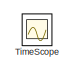
[diagram: root canvas - part 1/2, top left region]
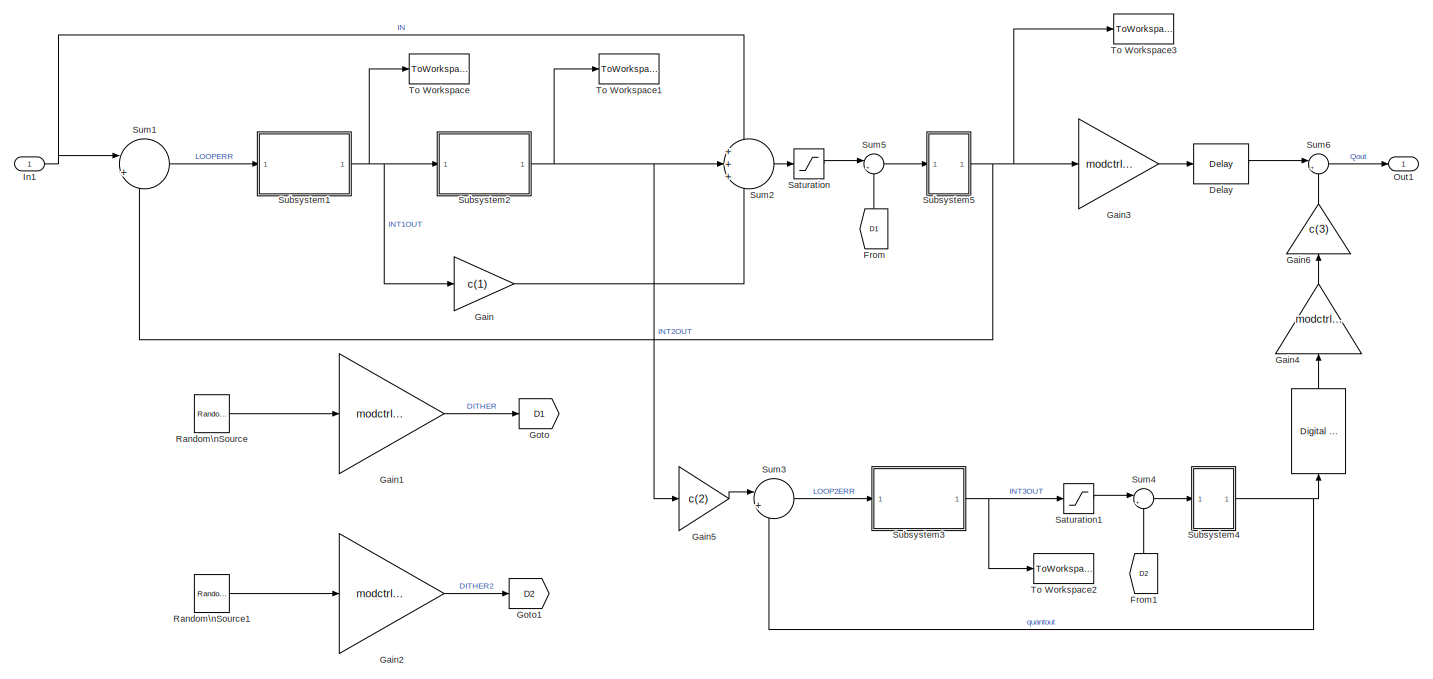
[diagram: root canvas - part 2/2, bottom center region]
MODEL audio_band_adc_
KIND model
BLOCK [Reference]    REF=dspobslib/Digital Filter
  AllPoleFiltStruct = Direct form
  AttributesFormatString = NTF1 = (1-z^-1)^2
  BiQuadCoeffs = [1 0.3 0.4 1 0.1 0.2]
  CoeffSource = Specify via dialog
  DenCoeffs = [1 0.1]
  FIRFiltStruct = Direct form
  FiltPerSampPopup = One filter per frame
  FilterSource = Specify via dialog
  IC = 0
  ICden = 0
  ICnum = 0
  IIRFiltStruct = Direct form II transposed
  InputProcessing = Inherited (this choice will be removed - see release notes)
  LatticeCoeffs = [0.2 0.4]
  LockScale = off
  MultithreadedSim = auto
  NameLocation = right
  NumCoeffs = [1 -2 1]
  Ports = [1, 1]
  SID = 397
  ScaleValues = 1
  SourceBlock = dspobslib/Digital Filter
  SourceProductBaseCode = DS
  SourceType = Digital Filter
  TypePopup = FIR (all zeros)
  UserData = DataTag0
  UserDataPersistent = on
  accumFracLength = 30
  accumMode = Same as product output
  accumWordLength = 32
  additionalParams = off
  allowOverrides = on
  denIgnore = on
  dfiltObjectName = dfilt.dffir([1 2 1])
  firstCoeffFracLength = 15
  firstCoeffMode = Same word length as input
  firstCoeffWordLength = 16
  memoryFracLength = 15
  memoryMode = Same as accumulator
  memoryWordLength = 16
  multiplicandFracLength = 30
  multiplicandMode = Same as output
  multiplicandWordLength = 32
  outputFracLength = 15
  outputMode = Same as accumulator
  outputWordLength = 16
  overflowMode = off
  prodOutputFracLength = 30
  prodOutputMode = Same as input
  prodOutputWordLength = 32
  roundingMode = Floor
  scaleValueFracLength = 14
  secondCoeffFracLength = 15
  secondCoeffMode = Same as numerator
  secondCoeffWordLength = 16
  showAcc = off
  showCoeff = off
  showMem = off
  showMpy = off
  showOut = off
  stageIOMode = Same as input
  stageIOWordLength = 16
  stageInFracLength = 15
  stageOutFracLength = 15
  tapSumFracLength = 30
  tapSumMode = Same as input
  tapSumWordLength = 32
  thirdCoeffFracLength = 15
  thirdCoeffMode = Same as input
  thirdCoeffWordLength = 16
BLOCK [Delay] Delay
  DelayLength = 3
  InitialCondition = 0
  InputPortMap = u0
  Ports = [1, 1]
  SID = 396
  UserData = DataTag1
  UserDataPersistent = on
BLOCK [From] From
  GotoTag = D1
  NameLocation = right
  SID = 398
BLOCK [From] From1
  GotoTag = D2
  NameLocation = right
  SID = 399
BLOCK [Gain] Gain
  Gain = c(1)
  SID = 400
BLOCK [Gain] Gain1
  AttributesFormatString = Dither level adjust
  Gain = modctrl.dgain1
  SID = 401
BLOCK [Gain] Gain2
  AttributesFormatString = Dither level adjust
  Gain = modctrl.dgain2
  SID = 402
BLOCK [Gain] Gain3
  Gain = modctrl.mgain1
  SID = 403
BLOCK [Gain] Gain4
  Gain = modctrl.mgain2
  NameLocation = right
  SID = 404
BLOCK [Gain] Gain5
  AttributesFormatString = Option to scale input\\nfor saturation control...
  Gain = c(2)
  SID = 405
BLOCK [Gain] Gain6
  AttributesFormatString = Option to un-scale input\\npost saturation control...
  Gain = c(3)
  NameLocation = right
  SID = 406
BLOCK [Goto] Goto
  GotoTag = D1
  SID = 407
BLOCK [Goto] Goto1
  GotoTag = D2
  SID = 408
BLOCK [Inport] In1
  SID = 395
BLOCK [Outport] Out1
  SID = 459
BLOCK [Reference] Random\nSource  REF=dspsrcs4/Random\nSource
  AttributesFormatString = Dither source
  CltLength = 12
  DataType = Double
  IsInherit = off
  MaxVal = 1
  MeanVal = 0
  MinVal = -1
  MultithreadedSim = auto
  NormMethod = Ziggurat
  OutComplex = Real
  OutputFrames = on
  Ports = [0, 1]
  RepMode = Not repeatable
  SID = 409
  SampFrame = 1
  SampMode = Discrete
  SampTime = 1/Fs
  SourceBlock = dspsrcs4/Random\nSource
  SourceProductBaseCode = DS
  SourceType = Random Source
  SrcType = Uniform
  UserData = DataTag2
  UserDataPersistent = on
  VarVal = 1
  rawSeed = 1
BLOCK [Reference] Random\nSource1  REF=dspsrcs4/Random\nSource
  AttributesFormatString = Dither source
  CltLength = 12
  DataType = Double
  IsInherit = off
  MaxVal = 1
  MeanVal = 0
  MinVal = -1
  MultithreadedSim = auto
  NormMethod = Ziggurat
  OutComplex = Real
  OutputFrames = on
  Ports = [0, 1]
  RepMode = Not repeatable
  SID = 410
  SampFrame = 1
  SampMode = Discrete
  SampTime = 1/Fs
  SourceBlock = dspsrcs4/Random\nSource
  SourceProductBaseCode = DS
  SourceType = Random Source
  SrcType = Uniform
  UserData = DataTag3
  UserDataPersistent = on
  VarVal = 1
  rawSeed = 1
BLOCK [Saturate] Saturation
  LowerLimit = -(modctrl.qsatin1)
  SID = 411
  UpperLimit = modctrl.qsatin1
BLOCK [Saturate] Saturation1
  LowerLimit = -(modctrl.qsatin2)
  SID = 412
  UpperLimit = modctrl.qsatin2
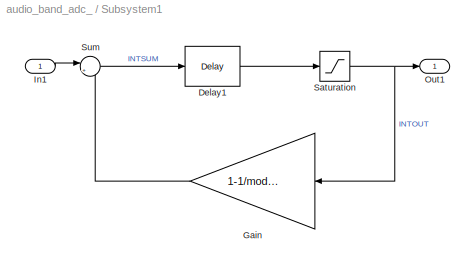
BLOCK [SubSystem] Subsystem1
  AttributesFormatString = Leaky delaying int
  Ports = [1, 1]
  RequestExecContextInheritance = off
  SID = 413
BLOCK [Delay] Subsystem1/Delay1
  DelayLength = 1
  InitialCondition = 0
  InputPortMap = u0
  Ports = [1, 1]
  SID = 415
BLOCK [Gain] Subsystem1/Gain
  AttributesFormatString = Integrator leakage
  Gain = 1-1/modctrl.igain1
  SID = 416
BLOCK [Inport] Subsystem1/In1
  SID = 414
BLOCK [Outport] Subsystem1/Out1
  SID = 419
BLOCK [Saturate] Subsystem1/Saturation
  LowerLimit = -(modctrl.isat1)
  NameLocation = top
  SID = 417
  UpperLimit = modctrl.isat1
BLOCK [Sum] Subsystem1/Sum
  AttributesFormatString = Integrator summer
  Inputs = |++
  NameLocation = top
  Ports = [2, 1]
  SID = 418
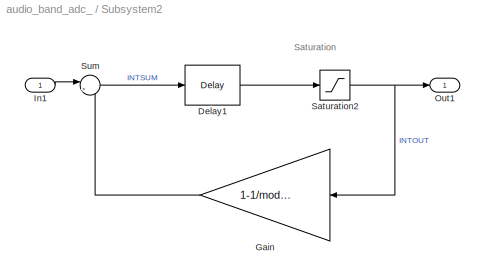
BLOCK [SubSystem] Subsystem2
  AttributesFormatString = Leaky delaying int
  Ports = [1, 1]
  RequestExecContextInheritance = off
  SID = 420
BLOCK [Delay] Subsystem2/Delay1
  DelayLength = 1
  InitialCondition = 0
  InputPortMap = u0
  Ports = [1, 1]
  SID = 422
BLOCK [Gain] Subsystem2/Gain
  AttributesFormatString = Integrator leakage
  Gain = 1-1/modctrl.igain2
  SID = 423
BLOCK [Inport] Subsystem2/In1
  SID = 421
BLOCK [Outport] Subsystem2/Out1
  SID = 426
BLOCK [Saturate] Subsystem2/Saturation2
  LowerLimit = -(modctrl.isat2)
  NameLocation = top
  SID = 424
  UpperLimit = modctrl.isat2
BLOCK [Sum] Subsystem2/Sum
  AttributesFormatString = Integrator summer
  Inputs = |++
  NameLocation = top
  Ports = [2, 1]
  SID = 425
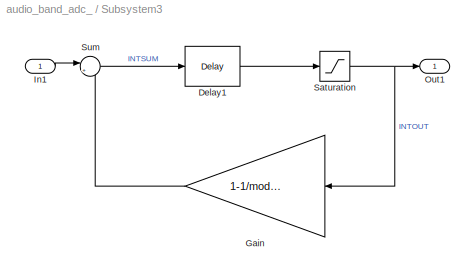
BLOCK [SubSystem] Subsystem3
  AttributesFormatString = Leaky delaying int
  Ports = [1, 1]
  RequestExecContextInheritance = off
  SID = 428
BLOCK [Delay] Subsystem3/Delay1
  DelayLength = 1
  InitialCondition = 0
  InputPortMap = u0
  Ports = [1, 1]
  SID = 430
BLOCK [Gain] Subsystem3/Gain
  AttributesFormatString = Integrator leakage
  Gain = 1-1/modctrl.igain3
  SID = 431
BLOCK [Inport] Subsystem3/In1
  SID = 429
BLOCK [Outport] Subsystem3/Out1
  SID = 434
BLOCK [Saturate] Subsystem3/Saturation
  LowerLimit = -(modctrl.isat3)
  NameLocation = top
  SID = 432
  UpperLimit = modctrl.isat3
BLOCK [Sum] Subsystem3/Sum
  AttributesFormatString = Integrator summer
  Inputs = |++
  NameLocation = top
  Ports = [2, 1]
  SID = 433
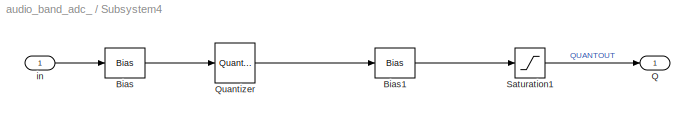
BLOCK [SubSystem] Subsystem4
  AttributesFormatString = 3-bit quantiser
  Ports = [1, 1]
  RequestExecContextInheritance = off
  SID = 435
BLOCK [Bias] Subsystem4/Bias
  AttributesFormatString = Need offset to give\\nMID-RISE quantiser
  Bias = 1/7
  SID = 437
  SaturateOnIntegerOverflow = off
BLOCK [Bias] Subsystem4/Bias1
  Bias = -1/7
  SID = 438
  SaturateOnIntegerOverflow = off
BLOCK [Outport] Subsystem4/Q
  SID = 441
BLOCK [Quantizer] Subsystem4/Quantizer
  LinearizeAsGain = off
  NameLocation = top
  QuantizationInterval = 2/7
  SID = 439
BLOCK [Saturate] Subsystem4/Saturation1
  AttributesFormatString = Limit quantiser\\noutput to +/-1
  LowerLimit = -1
  SID = 440
  UpperLimit = 1
BLOCK [Inport] Subsystem4/in
  SID = 436
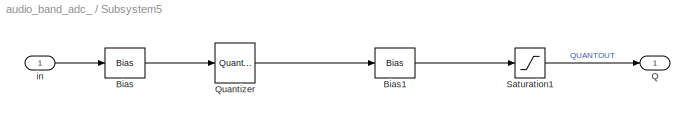
BLOCK [SubSystem] Subsystem5
  AttributesFormatString = 3-bit quantiser
  Ports = [1, 1]
  RequestExecContextInheritance = off
  SID = 442
BLOCK [Bias] Subsystem5/Bias
  AttributesFormatString = Need offset to give\\nMID-RISE quantiser
  Bias = 1/7
  SID = 444
  SaturateOnIntegerOverflow = off
BLOCK [Bias] Subsystem5/Bias1
  Bias = -1/7
  SID = 445
  SaturateOnIntegerOverflow = off
BLOCK [Outport] Subsystem5/Q
  SID = 448
BLOCK [Quantizer] Subsystem5/Quantizer
  LinearizeAsGain = off
  NameLocation = top
  QuantizationInterval = 2/7
  SID = 446
BLOCK [Saturate] Subsystem5/Saturation1
  AttributesFormatString = Limit quantiser\\noutput to +/-1
  LowerLimit = -1
  SID = 447
  UpperLimit = 1
BLOCK [Inport] Subsystem5/in
  SID = 443
BLOCK [Sum] Sum1
  AttributesFormatString = Modulator input\\nloop servo error (input - fbk)
  Inputs = |+-
  NameLocation = top
  Ports = [2, 1]
  SID = 449
BLOCK [Sum] Sum2
  Inputs = +++
  NameLocation = top
  Ports = [3, 1]
  SID = 450
BLOCK [Sum] Sum3
  AttributesFormatString = Modulator input\\nloop servo error (input - fbk)
  Inputs = |+-
  NameLocation = top
  Ports = [2, 1]
  SID = 451
BLOCK [Sum] Sum4
  Inputs = |++
  NameLocation = top
  Ports = [2, 1]
  SID = 452
BLOCK [Sum] Sum5
  Inputs = |++
  NameLocation = top
  Ports = [2, 1]
  SID = 453
BLOCK [Sum] Sum6
  Inputs = |++
  NameLocation = top
  Ports = [2, 1]
  SID = 454
BLOCK [Scope] TimeScope
  Floating = off
  IOType = viewer
  NumInputPorts = 1
  Ports = []
  SID = 360
  ScopeSpecificationString = Simulink.scopes.TimeScopeBlockCfg('CurrentConfiguration', extmgr.ConfigurationSet(extmgr.Configuration('Core','General UI',true),extmgr.Configuration('Core','Source UI',true),extmgr.Configuration('Sources','WiredSimulink',true,'DataLoggingVariableName','ScopeData1'),extmgr.Configuration('Visuals','Time Domain',true,'SerializedDisplays',{struct('MinYLimReal','0.4','MaxYLimReal','0.6','YLabelReal','...<+6169ch>
BLOCK [ToWorkspace] To Workspace
  MaxDataPoints = inf
  Ports = [1]
  SID = 455
  SampleTime = -1
  VariableName = INT1OUT
BLOCK [ToWorkspace] To Workspace1
  MaxDataPoints = inf
  Ports = [1]
  SID = 456
  SampleTime = -1
  VariableName = INT2OUT
BLOCK [ToWorkspace] To Workspace2
  MaxDataPoints = inf
  Ports = [1]
  SID = 457
  SampleTime = -1
  VariableName = INT3OUT
BLOCK [ToWorkspace] To Workspace3
  MaxDataPoints = inf
  Ports = [1]
  SID = 458
  SampleTime = -1
  VariableName = Qout1
ANNOTATION Subsystem2: Saturation
LINE  :1 -> Gain4:1
LINE Delay:1 -> Sum6:1
LINE From1:1 -> Sum4:2
LINE From:1 -> Sum5:2
LINE Gain1:1 -> Goto:1
LINE Gain2:1 -> Goto1:1
LINE Gain3:1 -> Delay:1
LINE Gain4:1 -> Gain6:1
LINE Gain5:1 -> Sum3:1
LINE Gain6:1 -> Sum6:2
LINE Gain:1 -> Sum2:3
NET In1:1 -> Sum1:1, Sum2:1
LINE Random\nSource1:1 -> Gain2:1
LINE Random\nSource:1 -> Gain1:1
LINE Saturation1:1 -> Sum4:1
LINE Saturation:1 -> Sum5:1
LINE Subsystem1/Delay1:1 -> Subsystem1/Saturation:1
LINE Subsystem1/Gain:1 -> Subsystem1/Sum:2
LINE Subsystem1/In1:1 -> Subsystem1/Sum:1
NET Subsystem1/Saturation:1 -> Subsystem1/Gain:1, Subsystem1/Out1:1
LINE Subsystem1/Sum:1 -> Subsystem1/Delay1:1
NET Subsystem1:1 -> Gain:1, Subsystem2:1, To Workspace:1
LINE Subsystem2/Delay1:1 -> Subsystem2/Saturation2:1
LINE Subsystem2/Gain:1 -> Subsystem2/Sum:2
LINE Subsystem2/In1:1 -> Subsystem2/Sum:1
NET Subsystem2/Saturation2:1 -> Subsystem2/Gain:1, Subsystem2/Out1:1
LINE Subsystem2/Sum:1 -> Subsystem2/Delay1:1
NET Subsystem2:1 -> Gain5:1, Sum2:2, To Workspace1:1
LINE Subsystem3/Delay1:1 -> Subsystem3/Saturation:1
LINE Subsystem3/Gain:1 -> Subsystem3/Sum:2
LINE Subsystem3/In1:1 -> Subsystem3/Sum:1
NET Subsystem3/Saturation:1 -> Subsystem3/Gain:1, Subsystem3/Out1:1
LINE Subsystem3/Sum:1 -> Subsystem3/Delay1:1
NET Subsystem3:1 -> Saturation1:1, To Workspace2:1
LINE Subsystem4/Bias1:1 -> Subsystem4/Saturation1:1
LINE Subsystem4/Bias:1 -> Subsystem4/Quantizer:1
LINE Subsystem4/Quantizer:1 -> Subsystem4/Bias1:1
LINE Subsystem4/Saturation1:1 -> Subsystem4/Q:1
LINE Subsystem4/in:1 -> Subsystem4/Bias:1
NET Subsystem4:1 ->  :1, Sum3:2
LINE Subsystem5/Bias1:1 -> Subsystem5/Saturation1:1
LINE Subsystem5/Bias:1 -> Subsystem5/Quantizer:1
LINE Subsystem5/Quantizer:1 -> Subsystem5/Bias1:1
LINE Subsystem5/Saturation1:1 -> Subsystem5/Q:1
LINE Subsystem5/in:1 -> Subsystem5/Bias:1
NET Subsystem5:1 -> Gain3:1, Sum1:2, To Workspace3:1
LINE Sum1:1 -> Subsystem1:1
LINE Sum2:1 -> Saturation:1
LINE Sum3:1 -> Subsystem3:1
LINE Sum4:1 -> Subsystem4:1
LINE Sum5:1 -> Subsystem5:1
LINE Sum6:1 -> Out1:1
note: NET lines group one-source signal fan-out (src -> all destinations, sorted); 1:1 wires keep LINE
